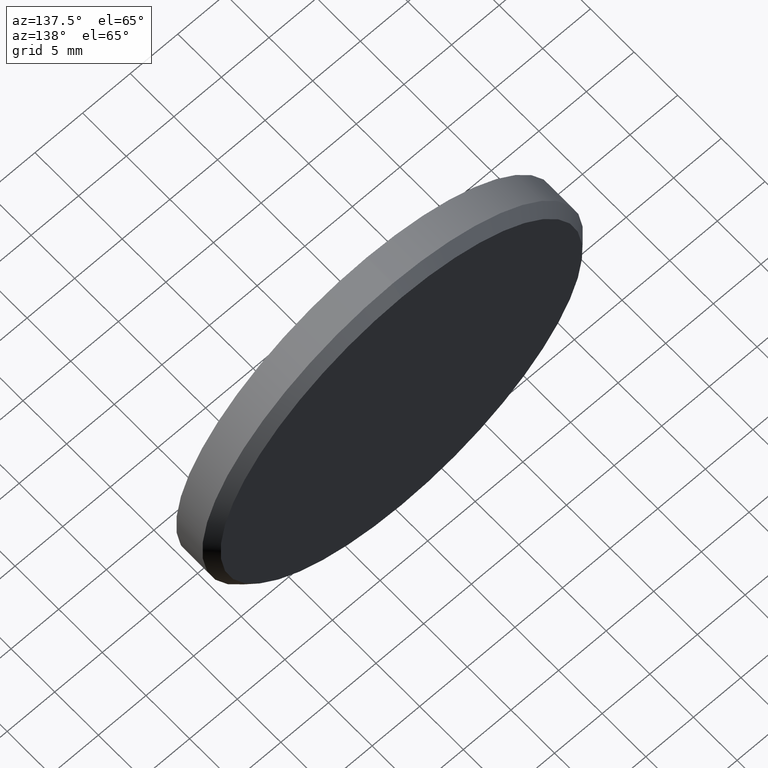
[diagram: clean part render]
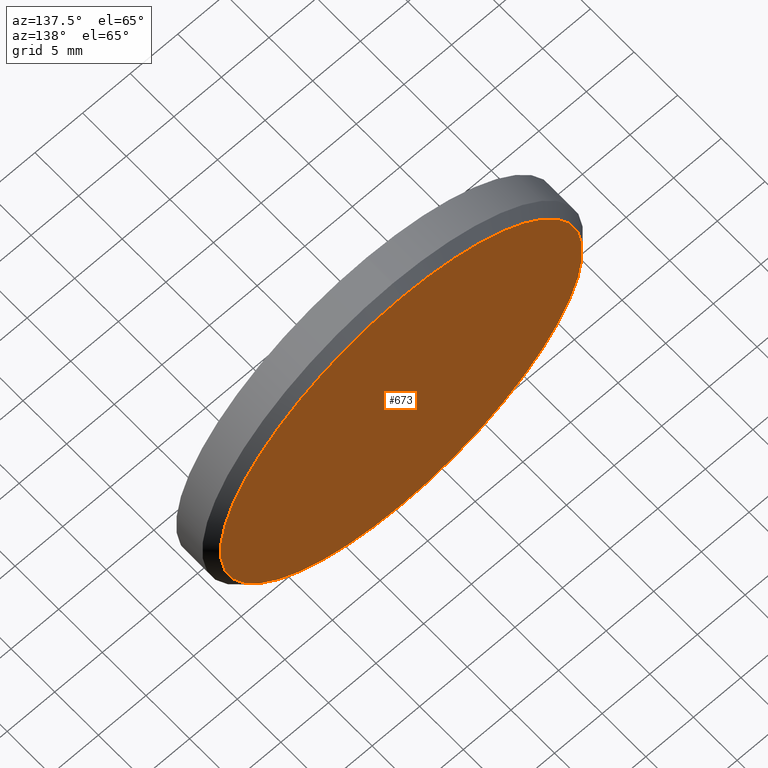
[diagram: same view with one face highlighted and labeled with its STEP entity id]
A machine part, auxiliary view. The second image highlights one B-rep face of the part: STEP entity #673.
In plain terms, the highlighted planar face has unit normal (0, 1, 0).
Its self-contained STEP definition (entity closure, byte-faithful):
#673 = ADVANCED_FACE ( 'NONE', ( #6266 ), #9705, .T. ) ;
#746 = DIRECTION ( 'NONE',  ( 0.000000000000000000, 1.000000000000000000, 0.000000000000000000 ) ) ;
#873 = CIRCLE ( 'NONE', #6631, 18.99999999999998934 ) ;
#1077 = AXIS2_PLACEMENT_3D ( 'NONE', #7489, #7578, #9845 ) ;
#1527 = EDGE_CURVE ( 'NONE', #1749, #10509, #3039, .T. ) ;
#1749 = VERTEX_POINT ( 'NONE', #1915 ) ;
#1915 = CARTESIAN_POINT ( 'NONE',  ( 0.000000000000000000, 2.000000000000000000, -18.99999999999998934 ) ) ;
#2499 = CARTESIAN_POINT ( 'NONE',  ( 0.000000000000000000, 2.000000000000000000, 0.000000000000000000 ) ) ;
#2636 = CARTESIAN_POINT ( 'NONE',  ( 2.388061258337338150E-15, 2.000000000000000000, 18.99999999999998934 ) ) ;
#3017 = DIRECTION ( 'NONE',  ( 0.000000000000000000, 0.000000000000000000, 1.000000000000000000 ) ) ;
#3039 = CIRCLE ( 'NONE', #12632, 18.99999999999998934 ) ;
#4595 = ORIENTED_EDGE ( 'NONE', *, *, #14498, .T. ) ;
#6266 = FACE_OUTER_BOUND ( 'NONE', #14164, .T. ) ;
#6411 = CARTESIAN_POINT ( 'NONE',  ( 0.000000000000000000, 2.000000000000000000, 0.000000000000000000 ) ) ;
#6631 = AXIS2_PLACEMENT_3D ( 'NONE', #2499, #11446, #13719 ) ;
#7489 = CARTESIAN_POINT ( 'NONE',  ( 0.000000000000000000, 2.000000000000000000, 0.000000000000000000 ) ) ;
#7578 = DIRECTION ( 'NONE',  ( 0.000000000000000000, 1.000000000000000000, 0.000000000000000000 ) ) ;
#9705 = PLANE ( 'NONE',  #1077 ) ;
#9739 = ORIENTED_EDGE ( 'NONE', *, *, #1527, .T. ) ;
#9845 = DIRECTION ( 'NONE',  ( 0.000000000000000000, -0.000000000000000000, 1.000000000000000000 ) ) ;
#10509 = VERTEX_POINT ( 'NONE', #2636 ) ;
#11446 = DIRECTION ( 'NONE',  ( 0.000000000000000000, 1.000000000000000000, 0.000000000000000000 ) ) ;
#12632 = AXIS2_PLACEMENT_3D ( 'NONE', #6411, #746, #3017 ) ;
#13719 = DIRECTION ( 'NONE',  ( 0.000000000000000000, 0.000000000000000000, 1.000000000000000000 ) ) ;
#14164 = EDGE_LOOP ( 'NONE', ( #9739, #4595 ) ) ;
#14498 = EDGE_CURVE ( 'NONE', #10509, #1749, #873, .T. ) ;